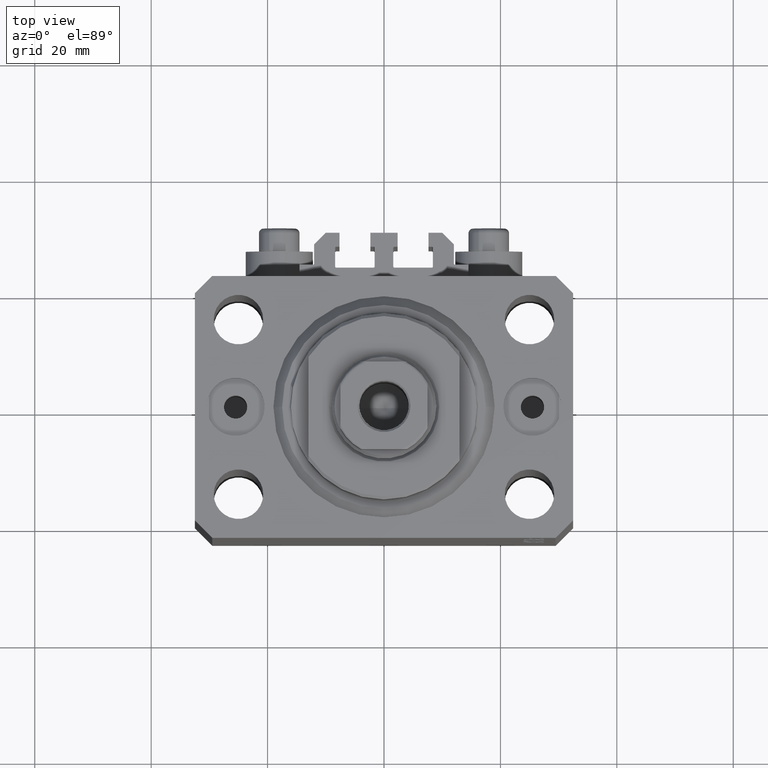
[diagram: clean part render]
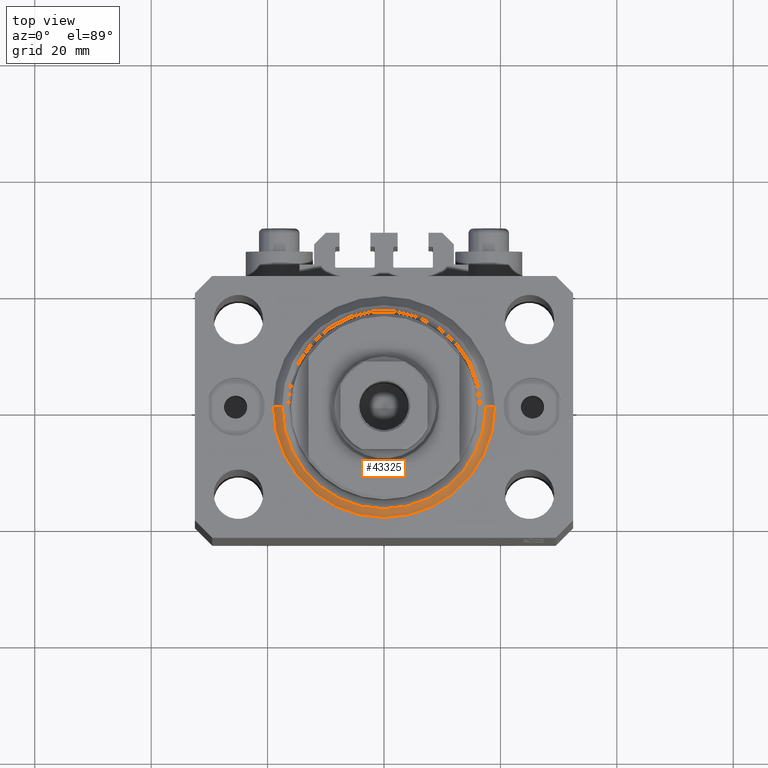
[diagram: same view with one face highlighted and labeled with its STEP entity id]
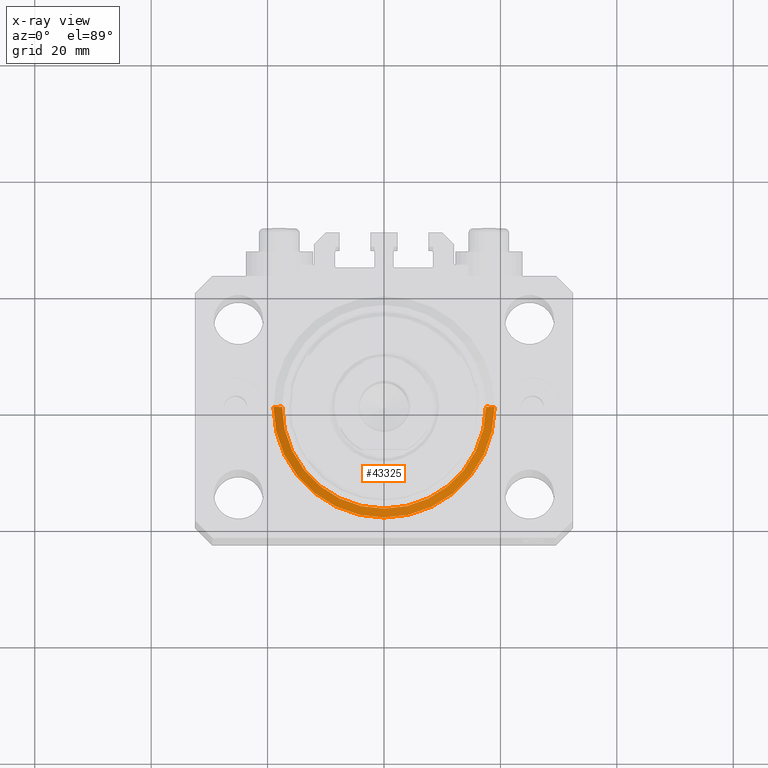
[diagram: x-ray of the same camera — body ghosted, the highlighted face saturated]
A machine part, top view. The second image highlights one B-rep face of the part: STEP entity #43325.
The next image is the same camera in x-ray: the body ghosted, the highlighted face saturated — about 0% of this face is hidden behind the body in this view.
In plain terms, the highlighted conical surface has half-angle 45 deg.
Its self-contained STEP definition (entity closure, byte-faithful):
#78 = EDGE_LOOP ( 'NONE', ( #43912, #24500, #38789, #21144 ) ) ;
#3280 = CARTESIAN_POINT ( 'NONE',  ( 19.00000000000000000, 0.000000000000000000, 1.500000000000004885 ) ) ;
#4259 = CARTESIAN_POINT ( 'NONE',  ( -19.00000000000000000, 2.326828918379970970E-15, 1.500000000000004885 ) ) ;
#4820 = CARTESIAN_POINT ( 'NONE',  ( -19.00000000000000000, 0.000000000000000000, 1.500000000000004885 ) ) ;
#7215 = CARTESIAN_POINT ( 'NONE',  ( 17.49999999999999289, 0.000000000000000000, 0.000000000000000000 ) ) ;
#8276 = DIRECTION ( 'NONE',  ( -0.000000000000000000, -0.000000000000000000, 1.000000000000000000 ) ) ;
#12077 = CARTESIAN_POINT ( 'NONE',  ( -17.49999999999999289, 2.234980408443919215E-15, 0.000000000000000000 ) ) ;
#14140 = VECTOR ( 'NONE', #32139, 1000.000000000000000 ) ;
#14846 = VECTOR ( 'NONE', #33347, 1000.000000000000000 ) ;
#15367 = DIRECTION ( 'NONE',  ( 1.000000000000000000, 0.000000000000000000, 0.000000000000000000 ) ) ;
#15686 = CONICAL_SURFACE ( 'NONE', #18753, 19.00000000000000000, 0.7853981633974492782 ) ;
#16758 = CARTESIAN_POINT ( 'NONE',  ( 0.000000000000000000, 0.000000000000000000, 1.500000000000004885 ) ) ;
#18231 = VERTEX_POINT ( 'NONE', #43796 ) ;
#18753 = AXIS2_PLACEMENT_3D ( 'NONE', #32399, #8276, #40949 ) ;
#19430 = CARTESIAN_POINT ( 'NONE',  ( 0.000000000000000000, 0.000000000000000000, 0.000000000000000000 ) ) ;
#21144 = ORIENTED_EDGE ( 'NONE', *, *, #40732, .F. ) ;
#21728 = CIRCLE ( 'NONE', #31644, 19.00000000000000000 ) ;
#22378 = LINE ( 'NONE', #4259, #14846 ) ;
#23834 = CIRCLE ( 'NONE', #33744, 17.49999999999999289 ) ;
#24155 = DIRECTION ( 'NONE',  ( -0.000000000000000000, -0.000000000000000000, 1.000000000000000000 ) ) ;
#24500 = ORIENTED_EDGE ( 'NONE', *, *, #35111, .F. ) ;
#29034 = LINE ( 'NONE', #3280, #14140 ) ;
#31315 = VERTEX_POINT ( 'NONE', #4820 ) ;
#31644 = AXIS2_PLACEMENT_3D ( 'NONE', #16758, #24155, #34656 ) ;
#32139 = DIRECTION ( 'NONE',  ( 0.7071067811865483499, 0.000000000000000000, 0.7071067811865467956 ) ) ;
#32399 = CARTESIAN_POINT ( 'NONE',  ( 0.000000000000000000, 0.000000000000000000, 1.500000000000004885 ) ) ;
#33347 = DIRECTION ( 'NONE',  ( -0.7071067811865483499, 8.659560562354943952E-17, 0.7071067811865467956 ) ) ;
#33744 = AXIS2_PLACEMENT_3D ( 'NONE', #19430, #33982, #15367 ) ;
#33982 = DIRECTION ( 'NONE',  ( -0.000000000000000000, -0.000000000000000000, -1.000000000000000000 ) ) ;
#34656 = DIRECTION ( 'NONE',  ( 1.000000000000000000, 0.000000000000000000, 0.000000000000000000 ) ) ;
#35111 = EDGE_CURVE ( 'NONE', #35358, #41669, #23834, .T. ) ;
#35358 = VERTEX_POINT ( 'NONE', #7215 ) ;
#38789 = ORIENTED_EDGE ( 'NONE', *, *, #41517, .T. ) ;
#39458 = EDGE_CURVE ( 'NONE', #41669, #31315, #22378, .T. ) ;
#39550 = FACE_OUTER_BOUND ( 'NONE', #78, .T. ) ;
#40732 = EDGE_CURVE ( 'NONE', #31315, #18231, #21728, .T. ) ;
#40949 = DIRECTION ( 'NONE',  ( 1.000000000000000000, 0.000000000000000000, 0.000000000000000000 ) ) ;
#41517 = EDGE_CURVE ( 'NONE', #35358, #18231, #29034, .T. ) ;
#41669 = VERTEX_POINT ( 'NONE', #12077 ) ;
#43325 = ADVANCED_FACE ( 'NONE', ( #39550 ), #15686, .T. ) ;
#43796 = CARTESIAN_POINT ( 'NONE',  ( 19.00000000000000000, 2.326828918379970970E-15, 1.500000000000004885 ) ) ;
#43912 = ORIENTED_EDGE ( 'NONE', *, *, #39458, .F. ) ;